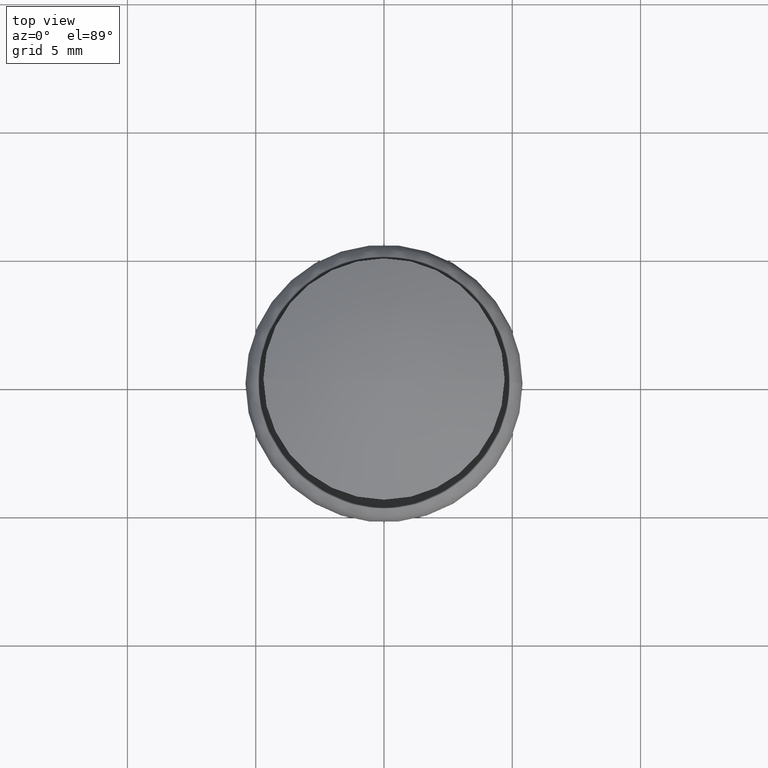
[diagram: clean part render]
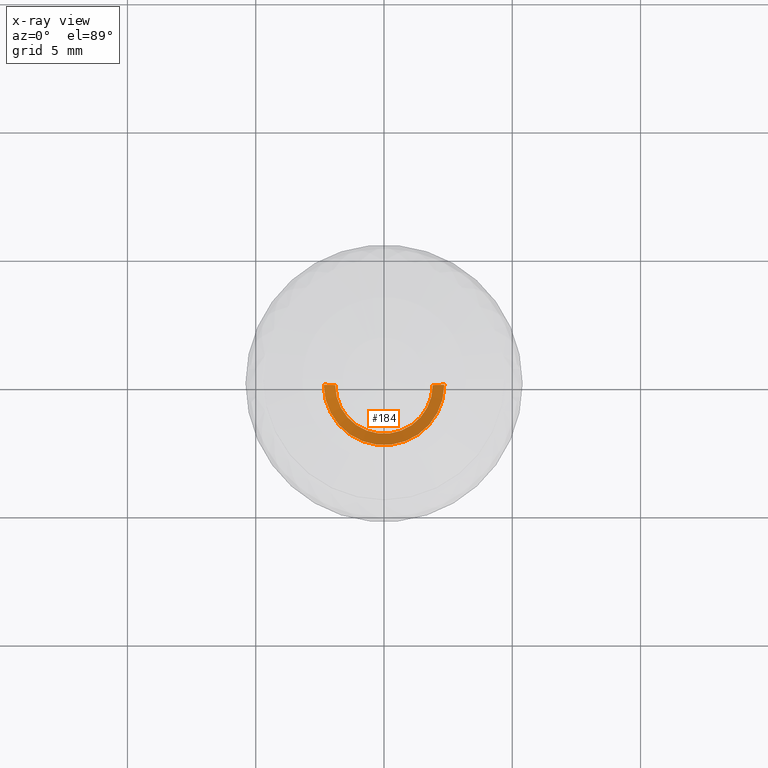
[diagram: x-ray — body ghosted, one internal face saturated and labeled with its STEP entity id]
A machine part, top view, then the same camera in x-ray: the body is ghosted and one INTERNAL B-rep face — a face not visible from any outside direction — is saturated and labeled: STEP entity #184.
In plain terms, the highlighted face is a freeform B-spline surface patch.
Its self-contained STEP definition (entity closure, byte-faithful):
#184=ADVANCED_FACE('',(#918),#917,.T.);
#917=( BOUNDED_SURFACE() B_SPLINE_SURFACE( 2,1,((#1520,#1521),(#1522,#1523),(#1524,#1525),(#1526,#1527),(#1528,#1529)), .UNSPECIFIED.,.F.,.F.,.F.) B_SPLINE_SURFACE_WITH_KNOTS((3,2,3),(2,2),(0.00000000000E+00,5.00000000000E-01,1.00000000000E+00),(0.00000000000E+00,1.00000000000E+00), .UNSPECIFIED. ) GEOMETRIC_REPRESENTATION_ITEM() RATIONAL_B_SPLINE_SURFACE(((1.00000000000E+00,1.00000000000E+00),(7.07106781187E-01,7.07106781187E-01),(1.00000000000E+00,1.00000000000E+00),(7.07106781187E-01,7.07106781187E-01),(1.00000000000E+00,1.00000000000E+00))) REPRESENTATION_ITEM('') SURFACE() );
#918=FACE_OUTER_BOUND('',#1530,.T.);
#1520=CARTESIAN_POINT('',(-1.90000000000E+00,-4.65365783676E-16,-8.00000000000E+00));
#1521=CARTESIAN_POINT('',(-2.35000000000E+00,-5.75583995599E-16,-7.50000000000E+00));
#1522=CARTESIAN_POINT('',(-1.90000000000E+00,-1.90000000000E+00,-8.00000000000E+00));
#1523=CARTESIAN_POINT('',(-2.35000000000E+00,-2.35000000000E+00,-7.50000000000E+00));
#1524=CARTESIAN_POINT('',(3.49024337757E-16,-1.90000000000E+00,-8.00000000000E+00));
#1525=CARTESIAN_POINT('',(4.31687996699E-16,-2.35000000000E+00,-7.50000000000E+00));
#1526=CARTESIAN_POINT('',(1.90000000000E+00,-1.90000000000E+00,-8.00000000000E+00));
#1527=CARTESIAN_POINT('',(2.35000000000E+00,-2.35000000000E+00,-7.50000000000E+00));
#1528=CARTESIAN_POINT('',(1.90000000000E+00,2.32682891838E-16,-8.00000000000E+00));
#1529=CARTESIAN_POINT('',(2.35000000000E+00,2.87791997800E-16,-7.50000000000E+00));
#1530=EDGE_LOOP('',(#1974,#1975,#1976,#1977));
#1974=ORIENTED_EDGE('',*,*,#2190,.T.);
#1975=ORIENTED_EDGE('',*,*,#2191,.F.);
#1976=ORIENTED_EDGE('',*,*,#2189,.F.);
#1977=ORIENTED_EDGE('',*,*,#2192,.T.);
#2189=EDGE_CURVE('',#3400,#3399,#3419,.T.);
#2190=EDGE_CURVE('',#3425,#3426,#3427,.T.);
#2191=EDGE_CURVE('',#3399,#3426,#3433,.T.);
#2192=EDGE_CURVE('',#3400,#3425,#3439,.T.);
#3399=VERTEX_POINT('',#4288);
#3400=VERTEX_POINT('',#4289);
#3419=CIRCLE('',#4301,1.90000000000E+00);
#3425=VERTEX_POINT('',#4302);
#3426=VERTEX_POINT('',#4303);
#3427=CIRCLE('',#4307,2.35000000000E+00);
#3433=(BOUNDED_CURVE() B_SPLINE_CURVE(1,(#4308,#4309),.UNSPECIFIED.,.F.,.F.) B_SPLINE_CURVE_WITH_KNOTS((2,2),(0.00000000000E+00,1.00000000000E+00),.UNSPECIFIED.) CURVE() GEOMETRIC_REPRESENTATION_ITEM() RATIONAL_B_SPLINE_CURVE((1.00000000000E+00,1.00000000000E+00)) REPRESENTATION_ITEM('') );
#3439=(BOUNDED_CURVE() B_SPLINE_CURVE(1,(#4310,#4311),.UNSPECIFIED.,.F.,.F.) B_SPLINE_CURVE_WITH_KNOTS((2,2),(0.00000000000E+00,1.00000000000E+00),.UNSPECIFIED.) CURVE() GEOMETRIC_REPRESENTATION_ITEM() RATIONAL_B_SPLINE_CURVE((7.50000000000E-01,7.50000000000E-01)) REPRESENTATION_ITEM('') );
#4288=CARTESIAN_POINT('',(-1.90000000000E+00,0.00000000000E+00,-8.00000000000E+00));
#4289=CARTESIAN_POINT('',(1.90000000000E+00,2.22044604925E-16,-8.00000000000E+00));
#4298=CARTESIAN_POINT('',(0.00000000000E+00,0.00000000000E+00,-8.00000000000E+00));
#4299=DIRECTION('',(-0.00000000000E+00,0.00000000000E+00,-1.00000000000E+00));
#4300=DIRECTION('',(-1.00000000000E+00,-1.22460635382E-16,0.00000000000E+00));
#4301=AXIS2_PLACEMENT_3D('',#4298,#4299,#4300);
#4302=CARTESIAN_POINT('',(2.35000000000E+00,0.00000000000E+00,-7.50000000000E+00));
#4303=CARTESIAN_POINT('',(-2.35000000000E+00,0.00000000000E+00,-7.50000000000E+00));
#4304=CARTESIAN_POINT('',(0.00000000000E+00,0.00000000000E+00,-7.50000000000E+00));
#4305=DIRECTION('',(-0.00000000000E+00,0.00000000000E+00,-1.00000000000E+00));
#4306=DIRECTION('',(-1.00000000000E+00,-1.22460635382E-16,0.00000000000E+00));
#4307=AXIS2_PLACEMENT_3D('',#4304,#4305,#4306);
#4308=CARTESIAN_POINT('',(-1.90000000000E+00,-4.65350414453E-16,-8.00000000000E+00));
#4309=CARTESIAN_POINT('',(-2.35000000000E+00,-5.75564986297E-16,-7.50000000000E+00));
#4310=CARTESIAN_POINT('',(1.90000000000E+00,5.18104078158E-16,-8.00000000000E+00));
#4311=CARTESIAN_POINT('',(2.35000000000E+00,7.40148683083E-16,-7.50000000000E+00));